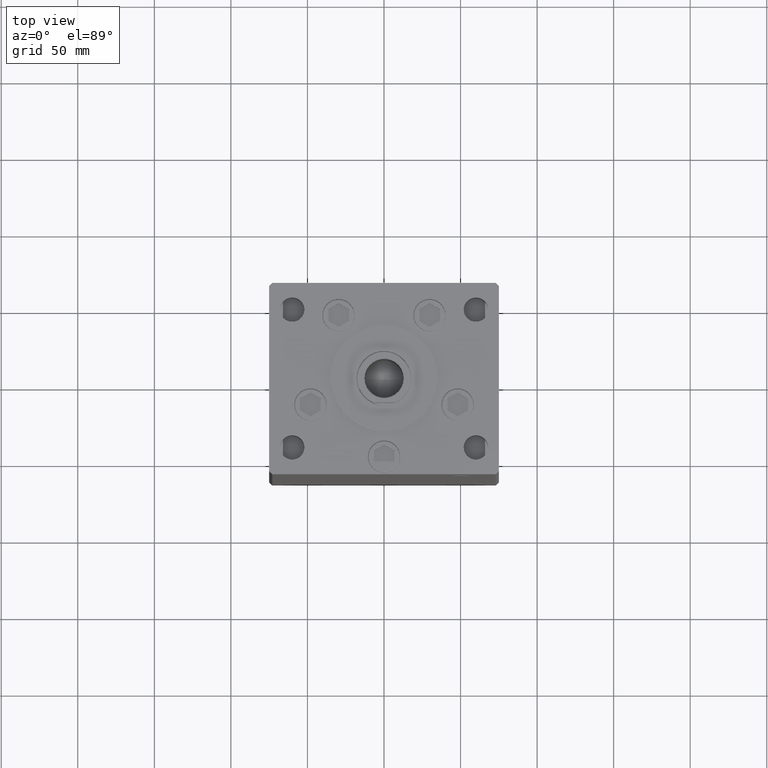
[diagram: clean part render]
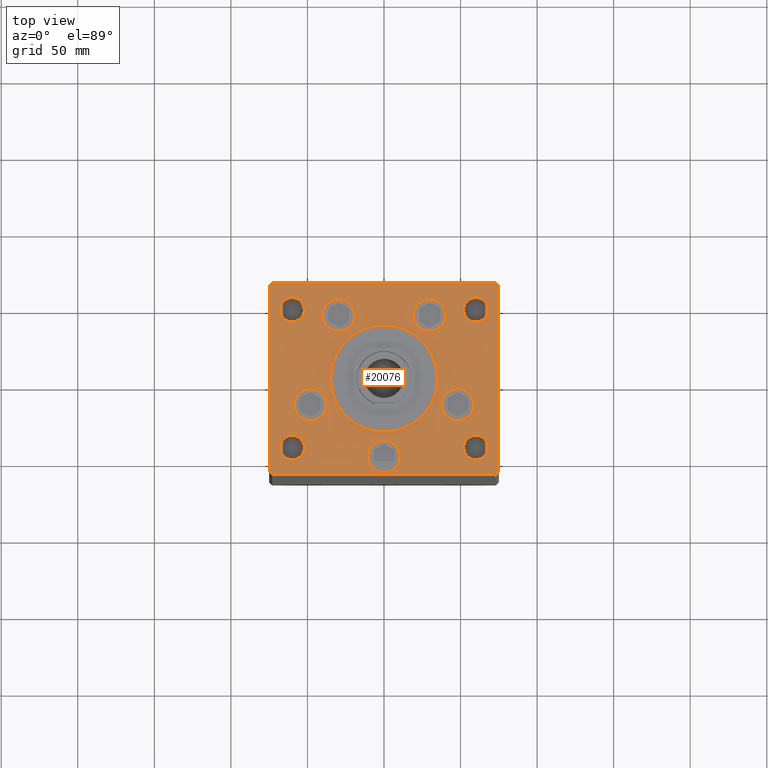
[diagram: same view with one face highlighted and labeled with its STEP entity id]
A machine part, top view. The second image highlights one B-rep face of the part: STEP entity #20076.
In plain terms, the highlighted planar face has unit normal (0, 0, 1).
Its self-contained STEP definition (entity closure, byte-faithful):
#4 = DIRECTION ( 'NONE',  ( -1.000000000000000000, -1.901066822988281950E-16, 0.000000000000000000 ) ) ;
#383 = VECTOR ( 'NONE', #3780, 1000.000000000000000 ) ;
#390 = ORIENTED_EDGE ( 'NONE', *, *, #41485, .F. ) ;
#524 = CARTESIAN_POINT ( 'NONE',  ( -52.00000000000000711, -45.00000000000000000, 0.000000000000000000 ) ) ;
#777 = CARTESIAN_POINT ( 'NONE',  ( 73.00000000000001421, 62.50000000000000000, 0.000000000000000000 ) ) ;
#792 = DIRECTION ( 'NONE',  ( 1.000000000000000000, 0.000000000000000000, 0.000000000000000000 ) ) ;
#1074 = DIRECTION ( 'NONE',  ( -0.000000000000000000, 0.000000000000000000, 1.000000000000000000 ) ) ;
#1280 = ORIENTED_EDGE ( 'NONE', *, *, #42234, .T. ) ;
#1306 = EDGE_LOOP ( 'NONE', ( #33586, #1280, #37126, #3765, #25884, #27639, #20327, #47612 ) ) ;
#1370 = VERTEX_POINT ( 'NONE', #9629 ) ;
#2127 = DIRECTION ( 'NONE',  ( 0.7071067811865489050, 0.7071067811865462405, 0.000000000000000000 ) ) ;
#2160 = CIRCLE ( 'NONE', #2977, 8.000000000000000000 ) ;
#2390 = LINE ( 'NONE', #50331, #46641 ) ;
#2397 = EDGE_CURVE ( 'NONE', #22932, #7186, #31042, .T. ) ;
#2416 = EDGE_CURVE ( 'NONE', #40341, #31995, #14232, .T. ) ;
#2505 = DIRECTION ( 'NONE',  ( 1.000000000000000000, 0.000000000000000000, 0.000000000000000000 ) ) ;
#2977 = AXIS2_PLACEMENT_3D ( 'NONE', #42929, #6328, #22384 ) ;
#3082 = EDGE_CURVE ( 'NONE', #26212, #1370, #48753, .T. ) ;
#3433 = CARTESIAN_POINT ( 'NONE',  ( -60.00000000000000000, 45.00000000000000711, 0.000000000000000000 ) ) ;
#3490 = EDGE_CURVE ( 'NONE', #8709, #28910, #15720, .T. ) ;
#3624 = CARTESIAN_POINT ( 'NONE',  ( 35.00000000000000711, -2.652630106891490698E-15, 0.000000000000000000 ) ) ;
#3763 = CARTESIAN_POINT ( 'NONE',  ( 68.00000000000000000, -45.00000000000000000, 0.000000000000000000 ) ) ;
#3765 = ORIENTED_EDGE ( 'NONE', *, *, #36192, .T. ) ;
#3780 = DIRECTION ( 'NONE',  ( 0.000000000000000000, 1.000000000000000000, 0.000000000000000000 ) ) ;
#3913 = DIRECTION ( 'NONE',  ( 0.000000000000000000, 0.000000000000000000, 1.000000000000000000 ) ) ;
#4159 = CARTESIAN_POINT ( 'NONE',  ( 68.00000000000000000, 45.00000000000000000, 0.000000000000000000 ) ) ;
#4270 = ORIENTED_EDGE ( 'NONE', *, *, #5733, .F. ) ;
#4339 = AXIS2_PLACEMENT_3D ( 'NONE', #43497, #7401, #792 ) ;
#4393 = DIRECTION ( 'NONE',  ( 1.000000000000000000, 0.000000000000000000, 0.000000000000000000 ) ) ;
#5006 = DIRECTION ( 'NONE',  ( 1.000000000000000000, 0.000000000000000000, 0.000000000000000000 ) ) ;
#5133 = ORIENTED_EDGE ( 'NONE', *, *, #23084, .F. ) ;
#5326 = CIRCLE ( 'NONE', #50759, 10.50000000000000178 ) ;
#5733 = EDGE_CURVE ( 'NONE', #27940, #33673, #46279, .T. ) ;
#5868 = EDGE_LOOP ( 'NONE', ( #11605, #34979 ) ) ;
#6328 = DIRECTION ( 'NONE',  ( 0.000000000000000000, 0.000000000000000000, 1.000000000000000000 ) ) ;
#6438 = EDGE_CURVE ( 'NONE', #10158, #12972, #12133, .T. ) ;
#6513 = AXIS2_PLACEMENT_3D ( 'NONE', #40002, #3913, #19973 ) ;
#6576 = EDGE_CURVE ( 'NONE', #31995, #40341, #45493, .T. ) ;
#6647 = DIRECTION ( 'NONE',  ( 0.7071067811865474617, -0.7071067811865474617, 0.000000000000000000 ) ) ;
#6709 = CARTESIAN_POINT ( 'NONE',  ( 29.73102073172061921, 41.43749999999997868, 0.000000000000000000 ) ) ;
#6857 = ORIENTED_EDGE ( 'NONE', *, *, #40083, .F. ) ;
#7124 = EDGE_CURVE ( 'NONE', #32165, #45279, #8532, .T. ) ;
#7186 = VERTEX_POINT ( 'NONE', #3624 ) ;
#7401 = DIRECTION ( 'NONE',  ( 0.000000000000000000, 0.000000000000000000, 1.000000000000000000 ) ) ;
#7551 = CIRCLE ( 'NONE', #18479, 10.50000000000000178 ) ;
#7957 = CIRCLE ( 'NONE', #21439, 8.000000000000007105 ) ;
#8442 = DIRECTION ( 'NONE',  ( 1.000000000000000000, 0.000000000000000000, 0.000000000000000000 ) ) ;
#8457 = FACE_BOUND ( 'NONE', #29167, .T. ) ;
#8532 = CIRCLE ( 'NONE', #9364, 10.50000000000000178 ) ;
#8547 = CARTESIAN_POINT ( 'NONE',  ( -73.00000000000001421, -62.50000000000002842, 0.000000000000000000 ) ) ;
#8709 = VERTEX_POINT ( 'NONE', #34087 ) ;
#8726 = PLANE ( 'NONE',  #51355 ) ;
#8835 = ORIENTED_EDGE ( 'NONE', *, *, #11504, .F. ) ;
#9261 = DIRECTION ( 'NONE',  ( 1.000000000000000000, 0.000000000000000000, 0.000000000000000000 ) ) ;
#9364 = AXIS2_PLACEMENT_3D ( 'NONE', #38918, #31013, #51053 ) ;
#9629 = CARTESIAN_POINT ( 'NONE',  ( -52.00000000000000000, 45.00000000000000711, 0.000000000000000000 ) ) ;
#9831 = CARTESIAN_POINT ( 'NONE',  ( -75.00000000000000000, -60.50000000000004263, 0.000000000000000000 ) ) ;
#9972 = CARTESIAN_POINT ( 'NONE',  ( 48.08326112068523628, -16.99999999999998934, 0.000000000000000000 ) ) ;
#10158 = VERTEX_POINT ( 'NONE', #47462 ) ;
#10617 = AXIS2_PLACEMENT_3D ( 'NONE', #45309, #16599, #25046 ) ;
#10844 = EDGE_CURVE ( 'NONE', #10932, #11724, #22714, .T. ) ;
#10932 = VERTEX_POINT ( 'NONE', #19804 ) ;
#11039 = CARTESIAN_POINT ( 'NONE',  ( 51.99999999999999289, 45.00000000000000000, 0.000000000000000000 ) ) ;
#11421 = DIRECTION ( 'NONE',  ( 1.000000000000000000, 0.000000000000000000, 0.000000000000000000 ) ) ;
#11504 = EDGE_CURVE ( 'NONE', #19306, #26139, #16746, .T. ) ;
#11605 = ORIENTED_EDGE ( 'NONE', *, *, #45237, .F. ) ;
#11724 = VERTEX_POINT ( 'NONE', #8547 ) ;
#11819 = LINE ( 'NONE', #15767, #24949 ) ;
#11985 = CARTESIAN_POINT ( 'NONE',  ( 75.00000000000001421, 60.50000000000002842, 0.000000000000000000 ) ) ;
#12133 = LINE ( 'NONE', #777, #23618 ) ;
#12173 = CARTESIAN_POINT ( 'NONE',  ( -75.00000000000000000, 60.50000000000000000, 0.000000000000000000 ) ) ;
#12257 = CARTESIAN_POINT ( 'NONE',  ( -68.00000000000000000, -45.00000000000000000, 0.000000000000000000 ) ) ;
#12594 = CARTESIAN_POINT ( 'NONE',  ( 40.23102073172061921, 41.43749999999997868, 0.000000000000000000 ) ) ;
#12637 = CARTESIAN_POINT ( 'NONE',  ( 75.00000000000001421, -60.49999999999992184, 0.000000000000000000 ) ) ;
#12663 = FACE_BOUND ( 'NONE', #40485, .T. ) ;
#12678 = LINE ( 'NONE', #12173, #34518 ) ;
#12972 = VERTEX_POINT ( 'NONE', #28743 ) ;
#13004 = DIRECTION ( 'NONE',  ( -0.000000000000000000, -0.000000000000000000, -1.000000000000000000 ) ) ;
#13124 = DIRECTION ( 'NONE',  ( -0.000000000000000000, -0.000000000000000000, -1.000000000000000000 ) ) ;
#13987 = CIRCLE ( 'NONE', #10617, 10.50000000000000000 ) ;
#14232 = CIRCLE ( 'NONE', #38633, 8.000000000000007105 ) ;
#14243 = CARTESIAN_POINT ( 'NONE',  ( -37.58326112068522917, -16.99999999999998934, 0.000000000000000000 ) ) ;
#14597 = CIRCLE ( 'NONE', #21323, 7.999999999999992895 ) ;
#14770 = ORIENTED_EDGE ( 'NONE', *, *, #17467, .F. ) ;
#14951 = CARTESIAN_POINT ( 'NONE',  ( 29.73102073172061921, 41.43749999999997868, 0.000000000000000000 ) ) ;
#15298 = VERTEX_POINT ( 'NONE', #11985 ) ;
#15395 = DIRECTION ( 'NONE',  ( 0.000000000000000000, 0.000000000000000000, 1.000000000000000000 ) ) ;
#15479 = CARTESIAN_POINT ( 'NONE',  ( 37.58326112068522917, -16.99999999999998934, 0.000000000000000000 ) ) ;
#15489 = CARTESIAN_POINT ( 'NONE',  ( 60.00000000000000711, -45.00000000000000000, 0.000000000000000000 ) ) ;
#15517 = CARTESIAN_POINT ( 'NONE',  ( 0.000000000000000000, -6.938893903907228378E-15, 0.000000000000000000 ) ) ;
#15720 = LINE ( 'NONE', #46369, #50453 ) ;
#15767 = CARTESIAN_POINT ( 'NONE',  ( -73.00000000000001421, -62.50000000000002842, 0.000000000000000000 ) ) ;
#15924 = AXIS2_PLACEMENT_3D ( 'NONE', #44187, #48640, #4393 ) ;
#16290 = CIRCLE ( 'NONE', #47425, 10.50000000000000178 ) ;
#16579 = CIRCLE ( 'NONE', #6513, 10.50000000000000178 ) ;
#16599 = DIRECTION ( 'NONE',  ( 0.000000000000000000, 0.000000000000000000, 1.000000000000000000 ) ) ;
#16746 = CIRCLE ( 'NONE', #15924, 8.000000000000007105 ) ;
#16870 = CARTESIAN_POINT ( 'NONE',  ( 0.000000000000000000, 0.000000000000000000, 0.000000000000000000 ) ) ;
#17191 = VERTEX_POINT ( 'NONE', #12257 ) ;
#17423 = ORIENTED_EDGE ( 'NONE', *, *, #6576, .T. ) ;
#17467 = EDGE_CURVE ( 'NONE', #37609, #31228, #29424, .T. ) ;
#17542 = EDGE_LOOP ( 'NONE', ( #26894, #19164 ) ) ;
#17560 = DIRECTION ( 'NONE',  ( 0.000000000000000000, 0.000000000000000000, 1.000000000000000000 ) ) ;
#17655 = AXIS2_PLACEMENT_3D ( 'NONE', #28051, #13004, #41713 ) ;
#17823 = CARTESIAN_POINT ( 'NONE',  ( -58.58326112068523628, -16.99999999999998934, 0.000000000000000000 ) ) ;
#18016 = DIRECTION ( 'NONE',  ( -0.7071067811865549002, -0.7071067811865401342, 0.000000000000000000 ) ) ;
#18431 = DIRECTION ( 'NONE',  ( -0.7071067811865524577, 0.7071067811865426878, 0.000000000000000000 ) ) ;
#18479 = AXIS2_PLACEMENT_3D ( 'NONE', #48810, #40649, #20883 ) ;
#18536 = CARTESIAN_POINT ( 'NONE',  ( 10.50000000000000000, -51.00000000000000000, 0.000000000000000000 ) ) ;
#19164 = ORIENTED_EDGE ( 'NONE', *, *, #3082, .T. ) ;
#19195 = DIRECTION ( 'NONE',  ( 0.000000000000000000, 0.000000000000000000, 1.000000000000000000 ) ) ;
#19306 = VERTEX_POINT ( 'NONE', #11039 ) ;
#19804 = CARTESIAN_POINT ( 'NONE',  ( -75.00000000000000000, -60.50000000000004263, 0.000000000000000000 ) ) ;
#19973 = DIRECTION ( 'NONE',  ( 1.000000000000000000, 0.000000000000000000, 0.000000000000000000 ) ) ;
#20076 = ADVANCED_FACE ( 'NONE', ( #8457, #25059, #24538, #20825, #12663, #40590, #20569, #41103, #36894, #32952, #44809 ), #8726, .T. ) ;
#20327 = ORIENTED_EDGE ( 'NONE', *, *, #29709, .T. ) ;
#20569 = FACE_BOUND ( 'NONE', #17542, .T. ) ;
#20825 = FACE_BOUND ( 'NONE', #40813, .T. ) ;
#20883 = DIRECTION ( 'NONE',  ( 1.000000000000000000, 0.000000000000000000, 0.000000000000000000 ) ) ;
#21054 = EDGE_LOOP ( 'NONE', ( #22070, #8835 ) ) ;
#21097 = CARTESIAN_POINT ( 'NONE',  ( -19.23102073172061566, 41.43749999999997868, 0.000000000000000000 ) ) ;
#21101 = DIRECTION ( 'NONE',  ( 0.000000000000000000, -1.000000000000000000, 0.000000000000000000 ) ) ;
#21323 = AXIS2_PLACEMENT_3D ( 'NONE', #3433, #47419, #43214 ) ;
#21439 = AXIS2_PLACEMENT_3D ( 'NONE', #41090, #33201, #8442 ) ;
#21512 = CIRCLE ( 'NONE', #48440, 8.000000000000000000 ) ;
#22005 = CIRCLE ( 'NONE', #41348, 10.50000000000000178 ) ;
#22070 = ORIENTED_EDGE ( 'NONE', *, *, #37252, .F. ) ;
#22088 = DIRECTION ( 'NONE',  ( 0.000000000000000000, 0.000000000000000000, 1.000000000000000000 ) ) ;
#22384 = DIRECTION ( 'NONE',  ( 1.000000000000000000, 0.000000000000000000, 0.000000000000000000 ) ) ;
#22490 = LINE ( 'NONE', #34097, #24736 ) ;
#22714 = LINE ( 'NONE', #9831, #27680 ) ;
#22932 = VERTEX_POINT ( 'NONE', #26418 ) ;
#22992 = EDGE_CURVE ( 'NONE', #7186, #22932, #23686, .T. ) ;
#23084 = EDGE_CURVE ( 'NONE', #45279, #32165, #22005, .T. ) ;
#23270 = LINE ( 'NONE', #31702, #383 ) ;
#23618 = VECTOR ( 'NONE', #4, 1000.000000000000000 ) ;
#23686 = CIRCLE ( 'NONE', #4339, 35.00000000000000711 ) ;
#24220 = CARTESIAN_POINT ( 'NONE',  ( 60.00000000000000711, -45.00000000000000000, 0.000000000000000000 ) ) ;
#24538 = FACE_BOUND ( 'NONE', #41255, .T. ) ;
#24736 = VECTOR ( 'NONE', #18016, 1000.000000000000000 ) ;
#24800 = DIRECTION ( 'NONE',  ( 1.000000000000000000, 0.000000000000000000, 0.000000000000000000 ) ) ;
#24949 = VECTOR ( 'NONE', #38954, 1000.000000000000000 ) ;
#25046 = DIRECTION ( 'NONE',  ( 1.000000000000000000, 0.000000000000000000, 0.000000000000000000 ) ) ;
#25059 = FACE_BOUND ( 'NONE', #5868, .T. ) ;
#25803 = VERTEX_POINT ( 'NONE', #524 ) ;
#25884 = ORIENTED_EDGE ( 'NONE', *, *, #31365, .T. ) ;
#26139 = VERTEX_POINT ( 'NONE', #4159 ) ;
#26212 = VERTEX_POINT ( 'NONE', #38040 ) ;
#26418 = CARTESIAN_POINT ( 'NONE',  ( -35.00000000000000711, -6.938893903907228378E-15, 0.000000000000000000 ) ) ;
#26894 = ORIENTED_EDGE ( 'NONE', *, *, #34225, .T. ) ;
#26916 = CARTESIAN_POINT ( 'NONE',  ( -40.23102073172061921, 41.43749999999997868, 0.000000000000000000 ) ) ;
#27003 = AXIS2_PLACEMENT_3D ( 'NONE', #14951, #47081, #46582 ) ;
#27042 = ORIENTED_EDGE ( 'NONE', *, *, #39898, .F. ) ;
#27639 = ORIENTED_EDGE ( 'NONE', *, *, #6438, .T. ) ;
#27680 = VECTOR ( 'NONE', #6647, 1000.000000000000114 ) ;
#27940 = VERTEX_POINT ( 'NONE', #12594 ) ;
#28051 = CARTESIAN_POINT ( 'NONE',  ( -60.00000000000000000, 45.00000000000000711, 0.000000000000000000 ) ) ;
#28222 = EDGE_CURVE ( 'NONE', #48713, #46890, #5326, .T. ) ;
#28743 = CARTESIAN_POINT ( 'NONE',  ( -72.99999999999998579, 62.49999999999997158, 0.000000000000000000 ) ) ;
#28910 = VERTEX_POINT ( 'NONE', #12637 ) ;
#29027 = ORIENTED_EDGE ( 'NONE', *, *, #2416, .T. ) ;
#29167 = EDGE_LOOP ( 'NONE', ( #38049, #31889 ) ) ;
#29276 = CARTESIAN_POINT ( 'NONE',  ( -60.00000000000000711, -45.00000000000000000, 0.000000000000000000 ) ) ;
#29424 = CIRCLE ( 'NONE', #51281, 10.50000000000000000 ) ;
#29709 = EDGE_CURVE ( 'NONE', #12972, #32278, #22490, .T. ) ;
#30173 = EDGE_LOOP ( 'NONE', ( #27042, #390 ) ) ;
#30257 = DIRECTION ( 'NONE',  ( 1.000000000000000000, 0.000000000000000000, 0.000000000000000000 ) ) ;
#30506 = CARTESIAN_POINT ( 'NONE',  ( 58.58326112068523628, -16.99999999999998934, 0.000000000000000000 ) ) ;
#31013 = DIRECTION ( 'NONE',  ( 0.000000000000000000, 0.000000000000000000, 1.000000000000000000 ) ) ;
#31042 = CIRCLE ( 'NONE', #51252, 35.00000000000000711 ) ;
#31228 = VERTEX_POINT ( 'NONE', #48765 ) ;
#31365 = EDGE_CURVE ( 'NONE', #15298, #10158, #2390, .T. ) ;
#31572 = DIRECTION ( 'NONE',  ( -0.000000000000000000, -0.000000000000000000, -1.000000000000000000 ) ) ;
#31606 = CIRCLE ( 'NONE', #41684, 10.50000000000000178 ) ;
#31700 = DIRECTION ( 'NONE',  ( 0.000000000000000000, 0.000000000000000000, 1.000000000000000000 ) ) ;
#31702 = CARTESIAN_POINT ( 'NONE',  ( 75.00000000000001421, -60.49999999999992184, 0.000000000000000000 ) ) ;
#31889 = ORIENTED_EDGE ( 'NONE', *, *, #22992, .F. ) ;
#31995 = VERTEX_POINT ( 'NONE', #3763 ) ;
#32165 = VERTEX_POINT ( 'NONE', #14243 ) ;
#32278 = VERTEX_POINT ( 'NONE', #51657 ) ;
#32283 = ORIENTED_EDGE ( 'NONE', *, *, #42085, .F. ) ;
#32669 = DIRECTION ( 'NONE',  ( 0.000000000000000000, 0.000000000000000000, 1.000000000000000000 ) ) ;
#32952 = FACE_OUTER_BOUND ( 'NONE', #1306, .T. ) ;
#33201 = DIRECTION ( 'NONE',  ( 0.000000000000000000, 0.000000000000000000, 1.000000000000000000 ) ) ;
#33586 = ORIENTED_EDGE ( 'NONE', *, *, #10844, .T. ) ;
#33611 = EDGE_CURVE ( 'NONE', #46890, #48713, #16290, .T. ) ;
#33673 = VERTEX_POINT ( 'NONE', #48576 ) ;
#34087 = CARTESIAN_POINT ( 'NONE',  ( 73.00000000000001421, -62.49999999999991473, 0.000000000000000000 ) ) ;
#34097 = CARTESIAN_POINT ( 'NONE',  ( -72.99999999999998579, 62.49999999999997158, 0.000000000000000000 ) ) ;
#34225 = EDGE_CURVE ( 'NONE', #1370, #26212, #14597, .T. ) ;
#34518 = VECTOR ( 'NONE', #21101, 1000.000000000000000 ) ;
#34979 = ORIENTED_EDGE ( 'NONE', *, *, #45955, .F. ) ;
#35572 = EDGE_LOOP ( 'NONE', ( #17423, #29027 ) ) ;
#36192 = EDGE_CURVE ( 'NONE', #28910, #15298, #23270, .T. ) ;
#36631 = CARTESIAN_POINT ( 'NONE',  ( -48.08326112068523628, -16.99999999999998934, 0.000000000000000000 ) ) ;
#36894 = FACE_BOUND ( 'NONE', #30173, .T. ) ;
#37126 = ORIENTED_EDGE ( 'NONE', *, *, #3490, .T. ) ;
#37252 = EDGE_CURVE ( 'NONE', #26139, #19306, #7957, .T. ) ;
#37609 = VERTEX_POINT ( 'NONE', #18536 ) ;
#37872 = ORIENTED_EDGE ( 'NONE', *, *, #33611, .F. ) ;
#38040 = CARTESIAN_POINT ( 'NONE',  ( -67.99999999999998579, 45.00000000000000711, 0.000000000000000000 ) ) ;
#38049 = ORIENTED_EDGE ( 'NONE', *, *, #2397, .F. ) ;
#38633 = AXIS2_PLACEMENT_3D ( 'NONE', #24220, #13124, #45260 ) ;
#38918 = CARTESIAN_POINT ( 'NONE',  ( -48.08326112068523628, -16.99999999999998934, 0.000000000000000000 ) ) ;
#38954 = DIRECTION ( 'NONE',  ( 1.000000000000000000, 7.604267291953125828E-16, 0.000000000000000000 ) ) ;
#39042 = CARTESIAN_POINT ( 'NONE',  ( 52.00000000000000000, -45.00000000000000000, 0.000000000000000000 ) ) ;
#39201 = DIRECTION ( 'NONE',  ( -1.000000000000000000, 0.000000000000000000, 0.000000000000000000 ) ) ;
#39381 = EDGE_LOOP ( 'NONE', ( #43747, #5133 ) ) ;
#39898 = EDGE_CURVE ( 'NONE', #25803, #17191, #2160, .T. ) ;
#40002 = CARTESIAN_POINT ( 'NONE',  ( -29.73102073172061921, 41.43749999999997868, 0.000000000000000000 ) ) ;
#40083 = EDGE_CURVE ( 'NONE', #33673, #27940, #31606, .T. ) ;
#40341 = VERTEX_POINT ( 'NONE', #39042 ) ;
#40485 = EDGE_LOOP ( 'NONE', ( #14770, #32283 ) ) ;
#40559 = VERTEX_POINT ( 'NONE', #21097 ) ;
#40590 = FACE_BOUND ( 'NONE', #39381, .T. ) ;
#40649 = DIRECTION ( 'NONE',  ( 0.000000000000000000, 0.000000000000000000, 1.000000000000000000 ) ) ;
#40813 = EDGE_LOOP ( 'NONE', ( #37872, #49825 ) ) ;
#41090 = CARTESIAN_POINT ( 'NONE',  ( 60.00000000000000000, 45.00000000000000000, 0.000000000000000000 ) ) ;
#41103 = FACE_BOUND ( 'NONE', #21054, .T. ) ;
#41255 = EDGE_LOOP ( 'NONE', ( #4270, #6857 ) ) ;
#41348 = AXIS2_PLACEMENT_3D ( 'NONE', #36631, #32669, #5006 ) ;
#41485 = EDGE_CURVE ( 'NONE', #17191, #25803, #21512, .T. ) ;
#41558 = CARTESIAN_POINT ( 'NONE',  ( 48.08326112068523628, -16.99999999999998934, 0.000000000000000000 ) ) ;
#41684 = AXIS2_PLACEMENT_3D ( 'NONE', #6709, #15395, #2505 ) ;
#41713 = DIRECTION ( 'NONE',  ( -1.000000000000000000, 0.000000000000000000, 0.000000000000000000 ) ) ;
#41924 = VERTEX_POINT ( 'NONE', #26916 ) ;
#42085 = EDGE_CURVE ( 'NONE', #31228, #37609, #13987, .T. ) ;
#42234 = EDGE_CURVE ( 'NONE', #11724, #8709, #11819, .T. ) ;
#42924 = DIRECTION ( 'NONE',  ( 1.000000000000000000, 0.000000000000000000, 0.000000000000000000 ) ) ;
#42929 = CARTESIAN_POINT ( 'NONE',  ( -60.00000000000000711, -45.00000000000000000, 0.000000000000000000 ) ) ;
#43214 = DIRECTION ( 'NONE',  ( -1.000000000000000000, 0.000000000000000000, 0.000000000000000000 ) ) ;
#43497 = CARTESIAN_POINT ( 'NONE',  ( 0.000000000000000000, -6.938893903907228378E-15, 0.000000000000000000 ) ) ;
#43747 = ORIENTED_EDGE ( 'NONE', *, *, #7124, .F. ) ;
#43804 = AXIS2_PLACEMENT_3D ( 'NONE', #15489, #31572, #39201 ) ;
#44187 = CARTESIAN_POINT ( 'NONE',  ( 60.00000000000000000, 45.00000000000000000, 0.000000000000000000 ) ) ;
#44809 = FACE_BOUND ( 'NONE', #35572, .T. ) ;
#45237 = EDGE_CURVE ( 'NONE', #40559, #41924, #16579, .T. ) ;
#45260 = DIRECTION ( 'NONE',  ( -1.000000000000000000, 0.000000000000000000, 0.000000000000000000 ) ) ;
#45279 = VERTEX_POINT ( 'NONE', #17823 ) ;
#45309 = CARTESIAN_POINT ( 'NONE',  ( 0.000000000000000000, -51.00000000000000000, 0.000000000000000000 ) ) ;
#45338 = DIRECTION ( 'NONE',  ( 0.000000000000000000, 0.000000000000000000, 1.000000000000000000 ) ) ;
#45493 = CIRCLE ( 'NONE', #43804, 8.000000000000007105 ) ;
#45955 = EDGE_CURVE ( 'NONE', #41924, #40559, #7551, .T. ) ;
#46279 = CIRCLE ( 'NONE', #27003, 10.50000000000000178 ) ;
#46369 = CARTESIAN_POINT ( 'NONE',  ( 73.00000000000001421, -62.49999999999991473, 0.000000000000000000 ) ) ;
#46582 = DIRECTION ( 'NONE',  ( 1.000000000000000000, 0.000000000000000000, 0.000000000000000000 ) ) ;
#46641 = VECTOR ( 'NONE', #18431, 1000.000000000000000 ) ;
#46890 = VERTEX_POINT ( 'NONE', #30506 ) ;
#47081 = DIRECTION ( 'NONE',  ( 0.000000000000000000, 0.000000000000000000, 1.000000000000000000 ) ) ;
#47419 = DIRECTION ( 'NONE',  ( -0.000000000000000000, -0.000000000000000000, -1.000000000000000000 ) ) ;
#47425 = AXIS2_PLACEMENT_3D ( 'NONE', #41558, #17560, #49708 ) ;
#47434 = EDGE_CURVE ( 'NONE', #32278, #10932, #12678, .T. ) ;
#47462 = CARTESIAN_POINT ( 'NONE',  ( 73.00000000000001421, 62.50000000000000000, 0.000000000000000000 ) ) ;
#47500 = CARTESIAN_POINT ( 'NONE',  ( 0.000000000000000000, -51.00000000000000000, 0.000000000000000000 ) ) ;
#47612 = ORIENTED_EDGE ( 'NONE', *, *, #47434, .T. ) ;
#48440 = AXIS2_PLACEMENT_3D ( 'NONE', #29276, #45338, #9261 ) ;
#48576 = CARTESIAN_POINT ( 'NONE',  ( 19.23102073172061566, 41.43749999999997868, 0.000000000000000000 ) ) ;
#48640 = DIRECTION ( 'NONE',  ( 0.000000000000000000, 0.000000000000000000, 1.000000000000000000 ) ) ;
#48713 = VERTEX_POINT ( 'NONE', #15479 ) ;
#48753 = CIRCLE ( 'NONE', #17655, 7.999999999999992895 ) ;
#48765 = CARTESIAN_POINT ( 'NONE',  ( -10.50000000000000000, -51.00000000000000000, 0.000000000000000000 ) ) ;
#48810 = CARTESIAN_POINT ( 'NONE',  ( -29.73102073172061921, 41.43749999999997868, 0.000000000000000000 ) ) ;
#49708 = DIRECTION ( 'NONE',  ( 1.000000000000000000, 0.000000000000000000, 0.000000000000000000 ) ) ;
#49825 = ORIENTED_EDGE ( 'NONE', *, *, #28222, .F. ) ;
#50331 = CARTESIAN_POINT ( 'NONE',  ( 75.00000000000001421, 60.50000000000002842, 0.000000000000000000 ) ) ;
#50453 = VECTOR ( 'NONE', #2127, 999.9999999999998863 ) ;
#50759 = AXIS2_PLACEMENT_3D ( 'NONE', #9972, #22088, #30257 ) ;
#51053 = DIRECTION ( 'NONE',  ( 1.000000000000000000, 0.000000000000000000, 0.000000000000000000 ) ) ;
#51252 = AXIS2_PLACEMENT_3D ( 'NONE', #15517, #19195, #42924 ) ;
#51281 = AXIS2_PLACEMENT_3D ( 'NONE', #47500, #31700, #11421 ) ;
#51355 = AXIS2_PLACEMENT_3D ( 'NONE', #16870, #1074, #24800 ) ;
#51657 = CARTESIAN_POINT ( 'NONE',  ( -75.00000000000000000, 60.50000000000000000, 0.000000000000000000 ) ) ;